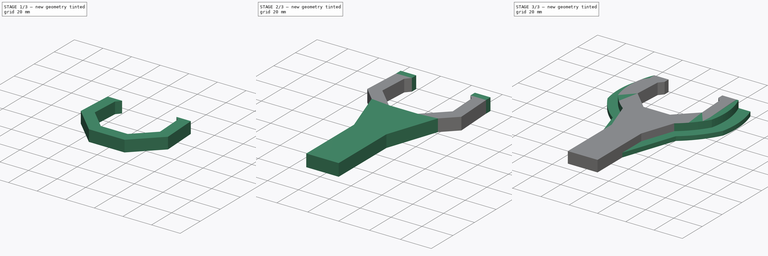
[diagram: build sequence overview — one tinted view per stage of 3, left to right]
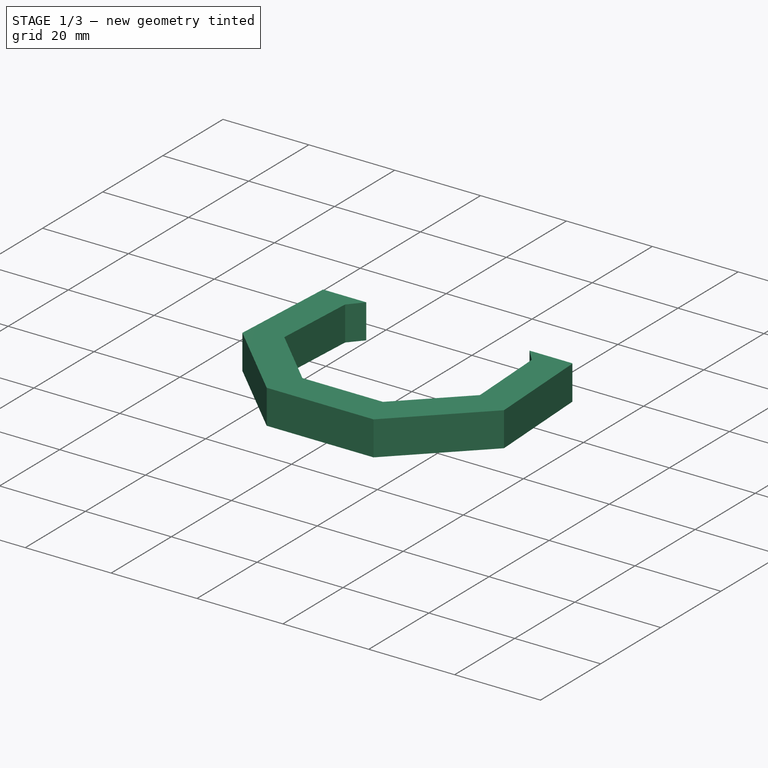
[diagram: stage 1 of 3 — iso view after this stage's code; geometry added in this stage tinted green]
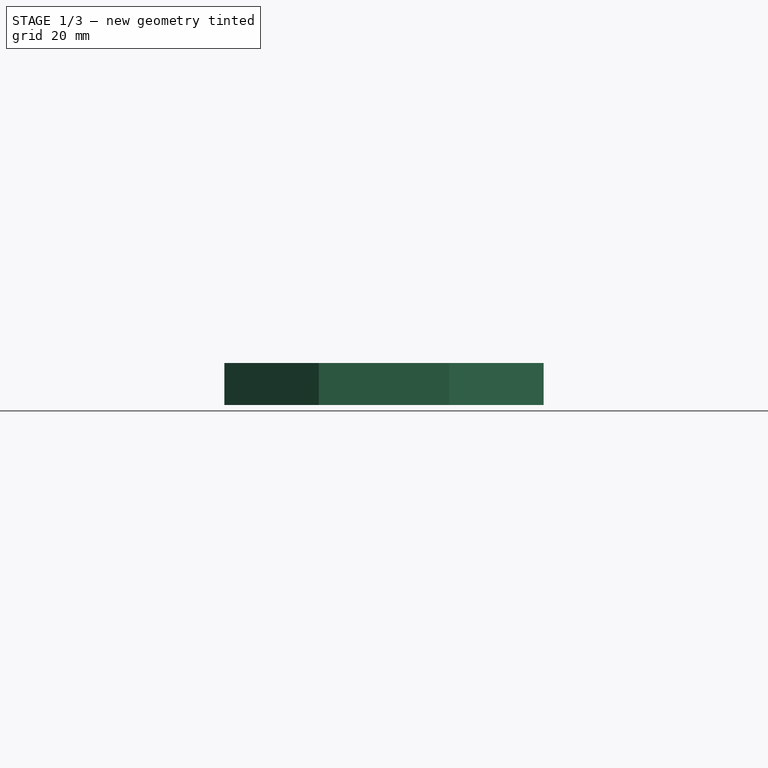
[diagram: stage 1 of 3 — front view after this stage's code; geometry added in this stage tinted green]
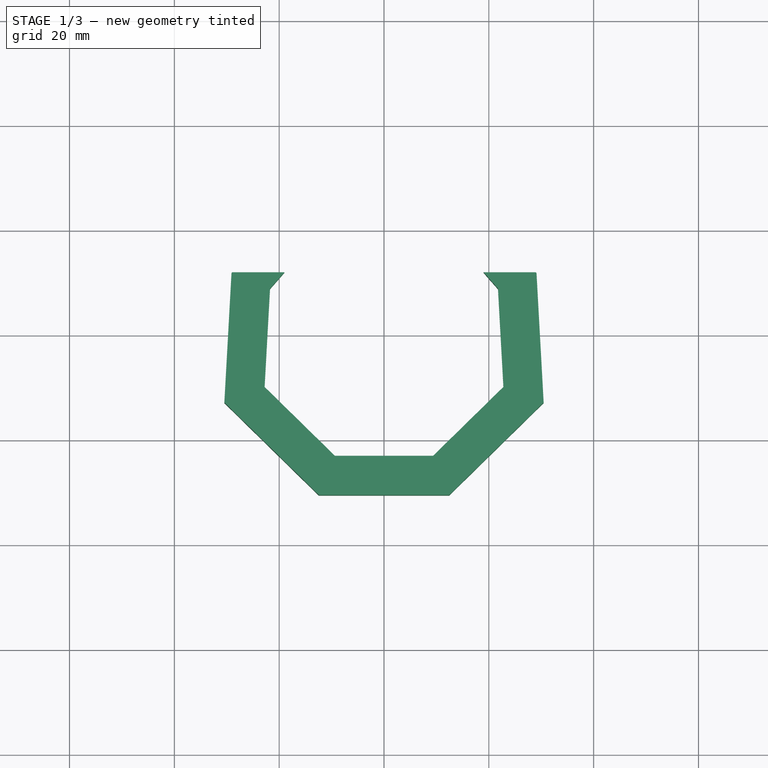
[diagram: stage 1 of 3 — top view after this stage's code; geometry added in this stage tinted green]
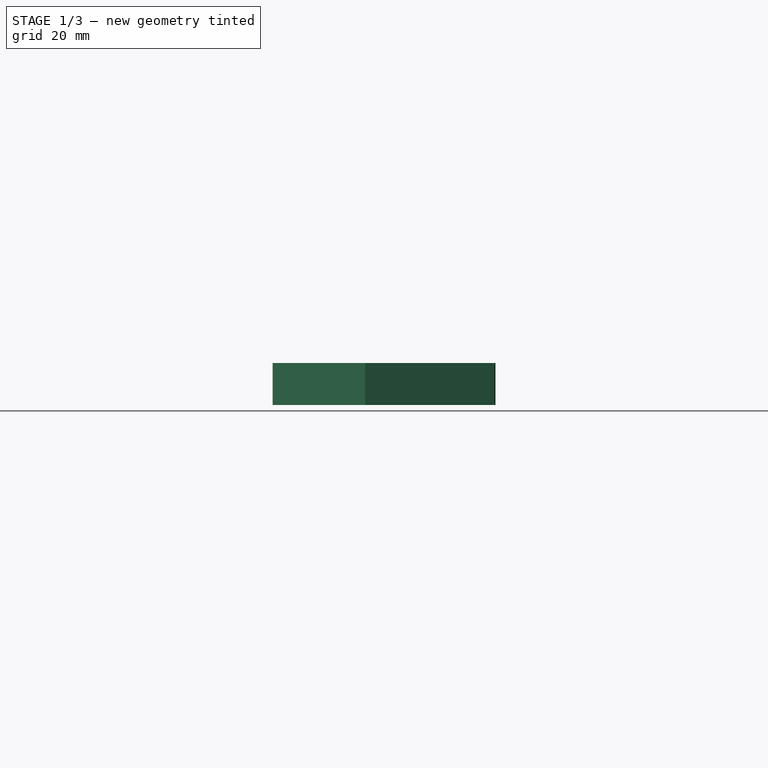
[diagram: stage 1 of 3 — right view after this stage's code; geometry added in this stage tinted green]
FCSTD DOCUMENT  (FreeCAD 1.0R39285 (Git))
Label: Ключ 34
License: All rights reserved
LicenseURL: https://en.wikipedia.org/wiki/All_rights_reserved
objects: Sketcher::SketchObject×5, PartDesign::Pad×5, PartDesign::Thickness×1, PartDesign::Body×1
note: 29 computed .brp shape members not serialized (recipe doc carries the construction recipe); baked Part::Feature solids carry a one-line shape summary decoded from their .brp

FEATURE [Sketcher::SketchObject] Sketch
  ArcFitTolerance = 1e-06
  AttachmentSupport = -> [XY_Plane]
  FullyConstrained = true
  MakeInternals = false
  MapMode = 5
  sketch-geometry (12):
    g0: LineSegment StartX=-21.75 StartY=8.87713 StartZ=0 EndX=-22.7847 EndY=-9.85623 EndZ=0
    g1: LineSegment StartX=-22.7847 StartY=-9.85623 StartZ=0 EndX=-9.38096 EndY=-22.9844 EndZ=0
    g2: LineSegment StartX=-9.38096 StartY=-22.9844 StartZ=0 EndX=9.38096 EndY=-22.9844 EndZ=0
    g3: LineSegment StartX=9.38096 StartY=-22.9844 StartZ=0 EndX=22.7847 EndY=-9.85623 EndZ=0
    g4: LineSegment StartX=22.7847 StartY=-9.85623 StartZ=0 EndX=21.75 EndY=8.87713 EndZ=0
    g5: LineSegment [constr] StartX=21.75 StartY=8.87713 StartZ=0 EndX=9.38096 EndY=22.9844 EndZ=0
    g6: LineSegment [constr] StartX=9.38096 StartY=22.9844 StartZ=0 EndX=-9.38096 EndY=22.9844 EndZ=0
    g7: LineSegment [constr] StartX=-9.38096 StartY=22.9844 StartZ=0 EndX=-21.75 EndY=8.87713 EndZ=0
    g8: Circle [constr] CenterX=0 CenterY=0 CenterZ=0 NormalX=0 NormalY=0 NormalZ=1 AngleXU=0 Radius=24.8251
    g9: LineSegment StartX=-21.75 StartY=8.87713 StartZ=0 EndX=-19 EndY=12.0136 EndZ=0
    g10: LineSegment StartX=21.75 StartY=8.87713 StartZ=0 EndX=19 EndY=12.0136 EndZ=0
    g11: LineSegment StartX=-19 StartY=12.0136 StartZ=0 EndX=19 EndY=12.0136 EndZ=0
  constraints (27):
    c: Coincident(g0,g1)
    c: Coincident(g1,g2)
    c: Coincident(g2,g3)
    c: Coincident(g3,g4)
    c: Coincident(g4,g5)
    c: Coincident(g5,g6)
    c: Coincident(g6,g7)
    c: Coincident(g7,g0)
    c: Equal(g0, g1-g7) x7
    c: PointOnObject(g0,g8)
    c: PointOnObject(g1,g8)
    c: PointOnObject(g2,g8)
    c: PointOnObject(g3,g8)
    c: PointOnObject(g5,g8)
    c: PointOnObject(g6,g8)
    c: Coincident(g8,g-1)
    c: Coincident(g9,g0)
    c: Coincident(g10,g4)
    c: Distance(g4,g0) = 45.5
    c: Coincident(g11,g9)
    c: Coincident(g11,g10)
    c: DistanceX(g11,g11) = 38
    c: PointOnObject(g9,g7)
    c: PointOnObject(g10,g5)
    c: Horizontal(g11)
    c: Symmetric(g4,g0,g-2)
    c: DistanceX(g0,g4) = 43.5
FEATURE [PartDesign::Pad] Pad
  Direction = (0,0,1)
  Length = 8
  Length2 = 10
  Profile = -> Sketch
  ReferenceAxis = -> Sketch [N_Axis]
  Refine = true
  Suppressed = false
  Type = 0
FEATURE [PartDesign::Thickness] Thickness
  Base = -> Pad [Face9,Face7,Face10]
  BaseFeature = -> Pad
  Intersection = false
  Join = 1
  Mode = 0
  Refine = true
  SupportTransform = false
  Suppressed = false
  Value = 7.5
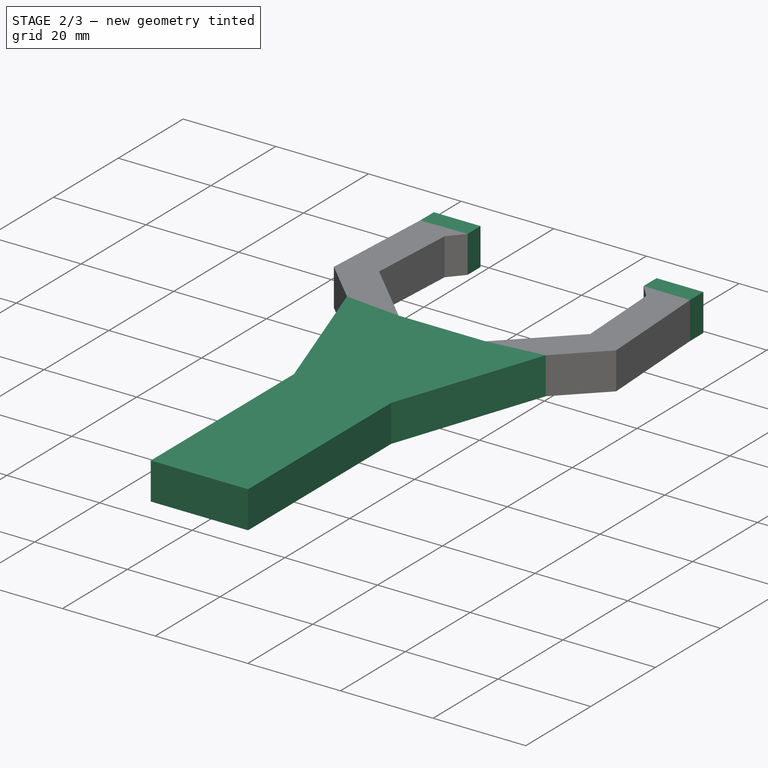
[diagram: stage 2 of 3 — iso view after this stage's code; geometry added in this stage tinted green]
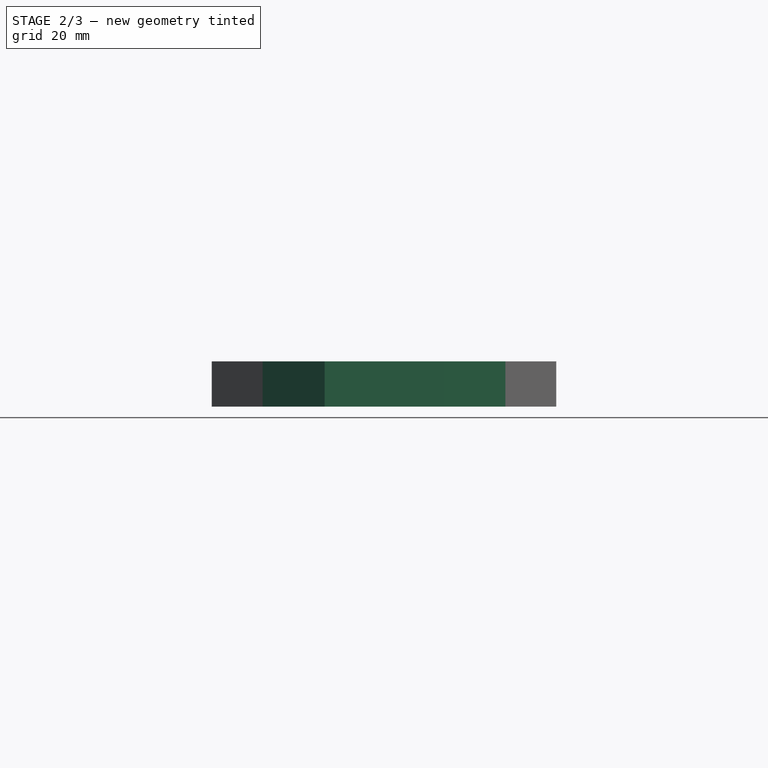
[diagram: stage 2 of 3 — front view after this stage's code; geometry added in this stage tinted green]
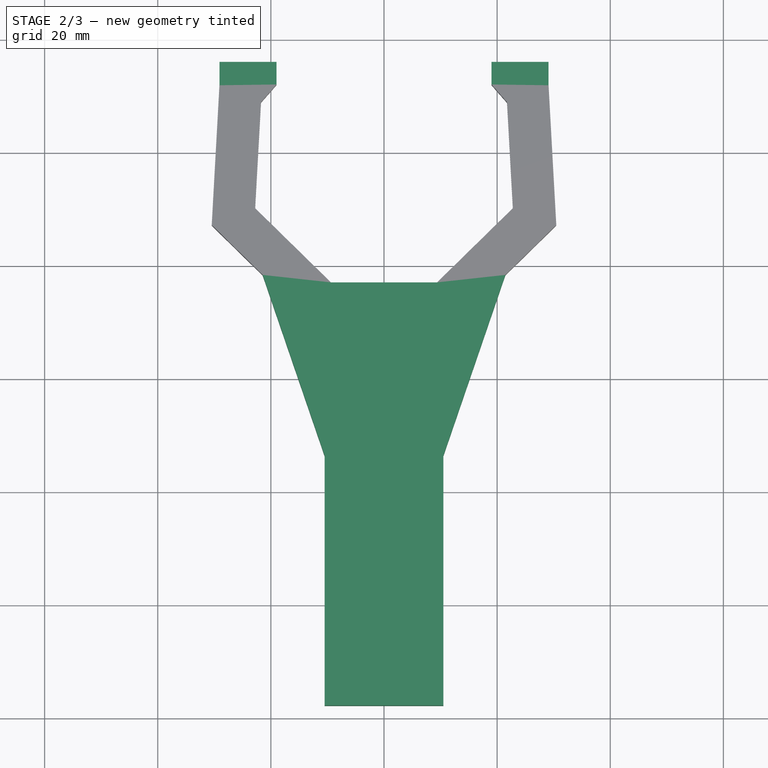
[diagram: stage 2 of 3 — top view after this stage's code; geometry added in this stage tinted green]
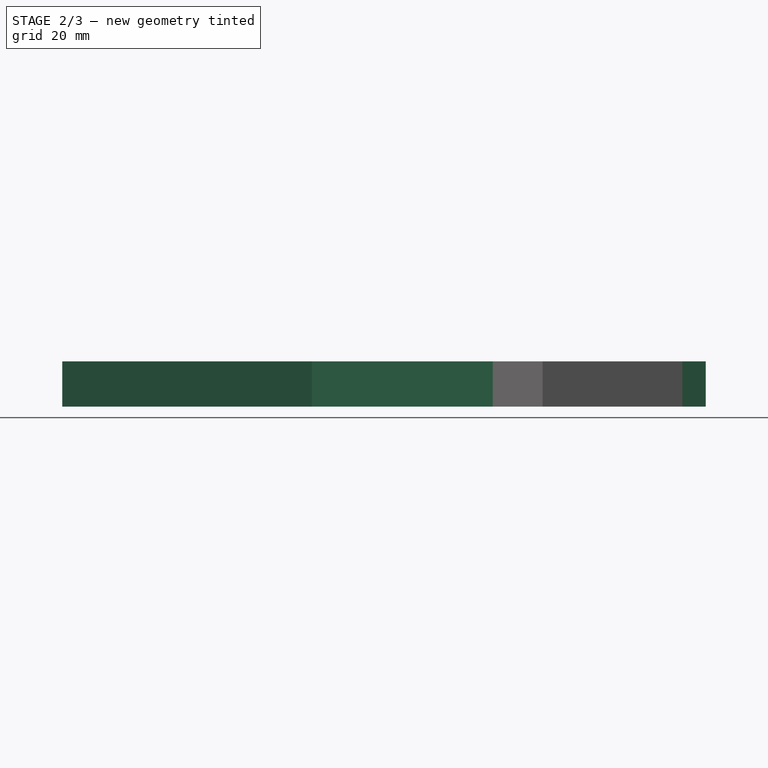
[diagram: stage 2 of 3 — right view after this stage's code; geometry added in this stage tinted green]
FEATURE [Sketcher::SketchObject] Sketch001
  ArcFitTolerance = 1e-06
  AttachmentSupport = -> [Thickness]
  ExternalGeometry = -> [Thickness]
  FullyConstrained = true
  MakeInternals = false
  MapMode = 5
  Placement = pos=(0,0,8) rot=(0,0,1;0rad)
  sketch-geometry (8):
    g0: LineSegment StartX=-29.0958 StartY=16.0136 StartZ=0 EndX=-29.0958 EndY=11.8753 EndZ=0
    g1: LineSegment StartX=-29.0958 StartY=11.8753 StartZ=0 EndX=-19 EndY=12.0136 EndZ=0
    g2: LineSegment StartX=-19 StartY=12.0136 StartZ=0 EndX=-19 EndY=16.0136 EndZ=0
    g3: LineSegment StartX=-19 StartY=16.0136 StartZ=0 EndX=-29.0958 EndY=16.0136 EndZ=0
    g4: LineSegment StartX=19 StartY=16.0136 StartZ=0 EndX=19 EndY=12.0136 EndZ=0
    g5: LineSegment StartX=19 StartY=12.0136 StartZ=0 EndX=29.0958 EndY=11.8753 EndZ=0
    g6: LineSegment StartX=29.0958 StartY=11.8753 StartZ=0 EndX=29.0958 EndY=16.0136 EndZ=0
    g7: LineSegment StartX=29.0958 StartY=16.0136 StartZ=0 EndX=19 EndY=16.0136 EndZ=0
  constraints (20):
    c: Coincident(g1,g2)
    c: Coincident(g2,g3)
    c: Coincident(g3,g0)
    c: Vertical(g0)
    c: Vertical(g2)
    c: Horizontal(g3)
    c: Coincident(g4,g5)
    c: Coincident(g6,g7)
    c: Coincident(g7,g4)
    c: Vertical(g4)
    c: Vertical(g6)
    c: Horizontal(g7)
    c: DistanceY(g4,g4) = 4
    c: Coincident(g4,g-4)
    c: Coincident(g1,g-3)
    c: Equal(g4,g2)
    c: Coincident(g5,g-5)
    c: Coincident(g5,g6)
    c: Coincident(g0,g1)
    c: Coincident(g0,g-6)
FEATURE [PartDesign::Pad] Pad001
  BaseFeature = -> Thickness
  Direction = (0,0,1)
  Length = 10
  Length2 = 10
  Profile = -> Sketch001
  ReferenceAxis = -> Sketch001 [N_Axis]
  Refine = true
  Reversed = true
  Suppressed = false
  Type = 3
  UpToFace = -> Thickness [Face8]
FEATURE [Sketcher::SketchObject] Sketch002
  ArcFitTolerance = 1e-06
  AttachmentSupport = -> [Pad001]
  ExternalGeometry = -> [Pad001]
  FullyConstrained = false
  MakeInternals = false
  MapMode = 5
  Placement = pos=(0,0,8) rot=(0,0,1;0rad)
  sketch-geometry (7):
    g0: LineSegment StartX=-21.4514 StartY=-21.6603 StartZ=0 EndX=-10.4938 EndY=-53.6355 EndZ=0
    g1: LineSegment StartX=21.4514 StartY=-21.6603 StartZ=0 EndX=10.4938 EndY=-53.6355 EndZ=0
    g2: LineSegment StartX=-10.4938 StartY=-53.6355 StartZ=0 EndX=-10.4938 EndY=-97.7798 EndZ=0
    g3: LineSegment StartX=-10.4938 StartY=-97.7798 StartZ=0 EndX=10.4938 EndY=-97.7798 EndZ=0
    g4: LineSegment StartX=10.4938 StartY=-97.7798 StartZ=0 EndX=10.4938 EndY=-53.6355 EndZ=0
    g5: LineSegment StartX=21.4514 StartY=-21.6603 StartZ=0 EndX=0 EndY=-30.4844 EndZ=0
    g6: LineSegment StartX=0 StartY=-30.4844 StartZ=0 EndX=-21.4514 EndY=-21.6603 EndZ=0
  constraints (15):
    c: Symmetric(g-4,g-4,g1)
    c: Symmetric(g-3,g-3,g0)
    c: Coincident(g0,g2)
    c: Vertical(g2)
    c: Coincident(g2,g3)
    c: Coincident(g3,g4)
    c: Coincident(g4,g1)
    c: Vertical(g4)
    c: Symmetric(g3,g2,g-2)
    c: Horizontal(g1,g0)
    c: Coincident(g5,g1)
    c: PointOnObject(g5,g-2)
    c: Coincident(g6,g5)
    c: Coincident(g6,g0)
    c: Horizontal(g-4,g5)
FEATURE [PartDesign::Pad] Pad002
  BaseFeature = -> Pad001
  Direction = (0,0,1)
  Length = 10
  Length2 = 10
  Profile = -> Sketch002
  ReferenceAxis = -> Sketch002 [N_Axis]
  Refine = true
  Reversed = true
  Suppressed = false
  Type = 3
  UpToFace = -> Pad001 [Face19]
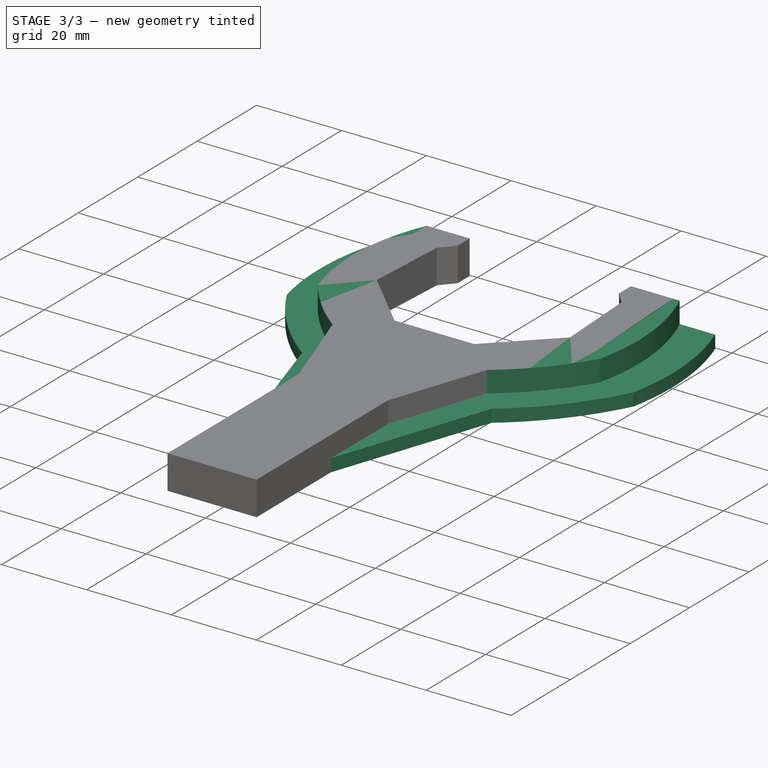
[diagram: stage 3 of 3 — iso view after this stage's code; geometry added in this stage tinted green]
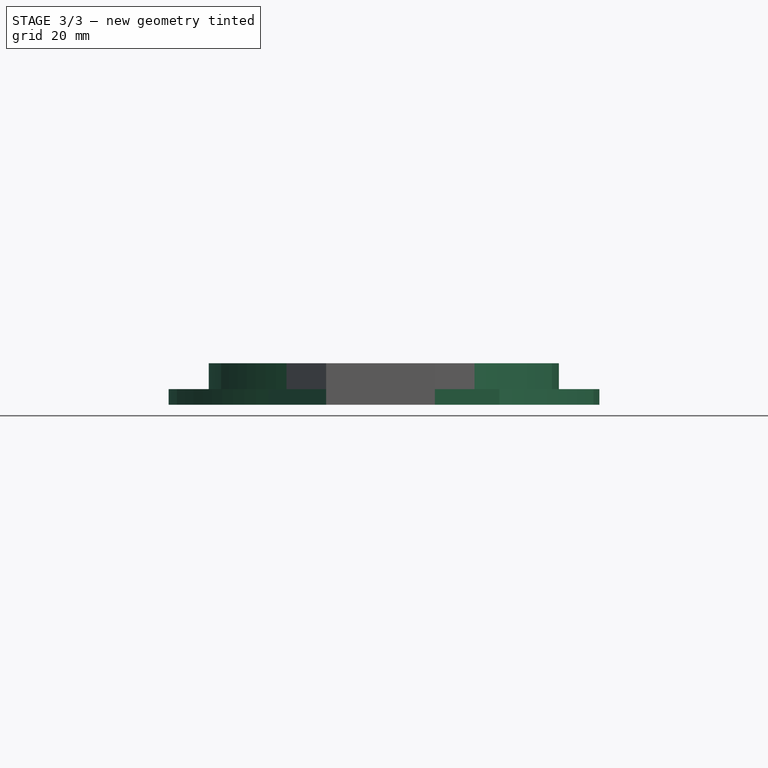
[diagram: stage 3 of 3 — front view after this stage's code; geometry added in this stage tinted green]
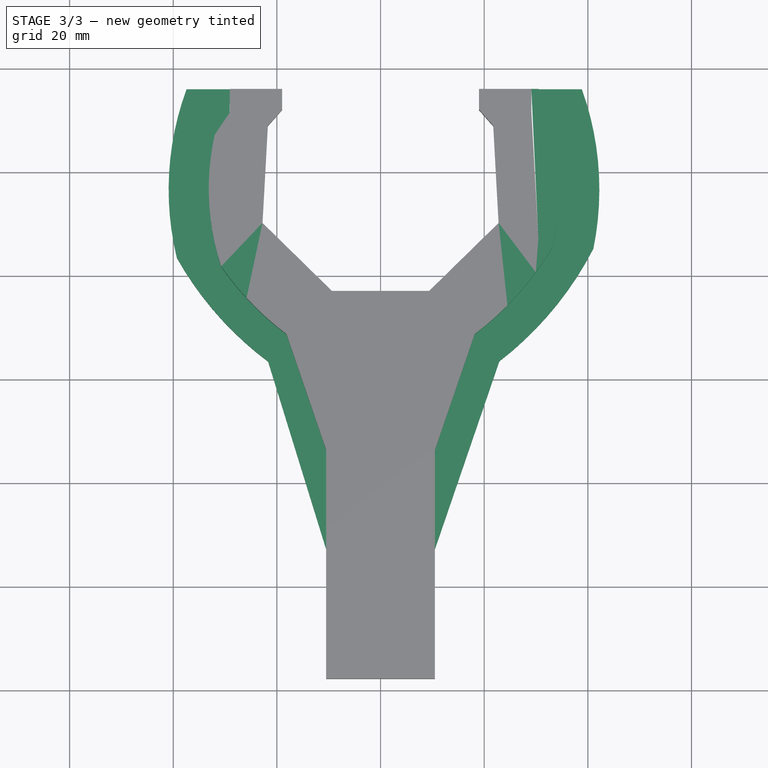
[diagram: stage 3 of 3 — top view after this stage's code; geometry added in this stage tinted green]
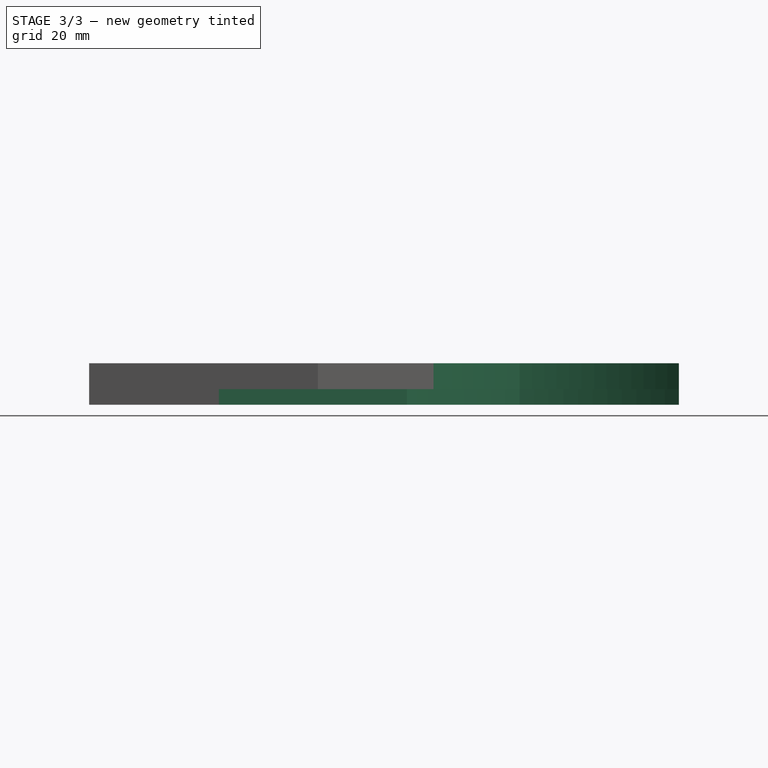
[diagram: stage 3 of 3 — right view after this stage's code; geometry added in this stage tinted green]
FEATURE [Sketcher::SketchObject] Sketch003
  ArcFitTolerance = 1e-06
  AttachmentSupport = -> [Pad002]
  ExternalGeometry = -> [Pad002]
  FullyConstrained = false
  MakeInternals = false
  MapMode = 5
  Placement = pos=(0,0,-1e-16) rot=(1,0,0;3.14159rad)
  sketch-geometry (12):
    g0: LineSegment StartX=-29.25 StartY=12.1157 StartZ=0 EndX=-12.1157 EndY=29.25 EndZ=0
    g1: LineSegment StartX=12.1157 StartY=29.25 StartZ=0 EndX=30.4607 EndY=12.8362 EndZ=0
    g2: ArcOfCircle CenterX=14.8381 CenterY=3.30651 CenterZ=0 NormalX=0 NormalY=0 NormalZ=1 AngleXU=0 Radius=47.9943 StartAngle=2.82463 EndAngle=3.55589
    g3: ArcOfCircle CenterX=16.8598 CenterY=-15.1434 CenterZ=0 NormalX=0 NormalY=0 NormalZ=1 AngleXU=0 Radius=58.1749 StartAngle=2.19565 EndAngle=2.52986
    g4: ArcOfCircle CenterX=-14.8381 CenterY=3.30651 CenterZ=0 NormalX=0 NormalY=0 NormalZ=1 AngleXU=0 Radius=49.2468 StartAngle=5.88004 EndAngle=6.51692
    g5: ArcOfCircle CenterX=-16.8598 CenterY=-15.1434 CenterZ=0 NormalX=0 NormalY=0 NormalZ=1 AngleXU=0 Radius=58.1749 StartAngle=0.538919 EndAngle=0.945939
    g6: LineSegment StartX=-12.1157 StartY=29.25 StartZ=0 EndX=-17.1715 EndY=32.0392 EndZ=0
    g7: LineSegment StartX=12.1157 StartY=29.25 StartZ=0 EndX=17.1715 EndY=32.0392 EndZ=0
    g8: LineSegment StartX=-29.0958 StartY=-16.0136 StartZ=0 EndX=-29.0958 EndY=-16.0136 EndZ=0
    g9: LineSegment StartX=-29.0958 StartY=-16.0136 StartZ=0 EndX=-29.25 EndY=12.1157 EndZ=0
    g10: LineSegment StartX=30.4607 StartY=-16.0136 StartZ=0 EndX=29.0958 EndY=-16.0136 EndZ=0
    g11: LineSegment StartX=29.0958 StartY=-16.0136 StartZ=0 EndX=30.4607 EndY=12.8362 EndZ=0
  constraints (26):
    c: Horizontal(g-8,g2)
    c: Horizontal(g-7,g4)
    c: Coincident(g1,g-5)
    c: Coincident(g0,g-4)
    c: Coincident(g3,g2)
    c: Coincident(g5,g4)
    c: Symmetric(g3,g5,g-2)
    c: Symmetric(g4,g2,g-2)
    c: PointOnObject(g5,g-10)
    c: Coincident(g6,g0)
    c: Coincident(g6,g3)
    c: Coincident(g7,g1)
    c: Coincident(g7,g5)
    c: Symmetric(g3,g5,g-2)
    c: Coincident(g8,g-8)
    c: Coincident(g9,g8)
    c: Coincident(g9,g0)
    c: Coincident(g0,g-4)
    c: Coincident(g8,g2)
    c: Vertical(g2,g-3)
    c: Coincident(g10,g4)
    c: Coincident(g10,g-7)
    c: Coincident(g11,g10)
    c: Coincident(g11,g1)
    c: Coincident(g1,g-6)
    c: Vertical(g4,g1)
FEATURE [PartDesign::Pad] Pad003
  BaseFeature = -> Pad002
  Direction = (0,0,-1)
  Length = 11
  Length2 = 10
  Profile = -> Sketch003
  ReferenceAxis = -> Sketch003 [N_Axis]
  Refine = true
  Reversed = true
  Suppressed = false
  Type = 3
  UpToFace = -> Pad002 [Face24]
FEATURE [Sketcher::SketchObject] Sketch004
  ArcFitTolerance = 1e-06
  AttachmentOffset = pos=(0,0,-6) rot=(0,0,1;0rad)
  ExternalGeometry = -> [Pad003]
  FullyConstrained = false
  MakeInternals = false
  MapMode = 5
  Placement = pos=(0,0,0) rot=(1,0,0;3.14159rad)
  sketch-geometry (16):
    g0: ArcOfCircle CenterX=-14.8381 CenterY=3.30651 CenterZ=0 NormalX=0 NormalY=0 NormalZ=1 AngleXU=0 Radius=49.2468 StartAngle=5.88004 EndAngle=6.51692
    g1: ArcOfCircle CenterX=-16.8598 CenterY=-15.1434 CenterZ=0 NormalX=0 NormalY=0 NormalZ=1 AngleXU=0 Radius=58.1749 StartAngle=0.538919 EndAngle=0.925277
    g2: ArcOfCircle CenterX=14.8381 CenterY=3.30651 CenterZ=0 NormalX=0 NormalY=0 NormalZ=1 AngleXU=0 Radius=47.9943 StartAngle=2.86288 EndAngle=3.55589
    g3: ArcOfCircle CenterX=16.8173 CenterY=-15.1029 CenterZ=0 NormalX=0 NormalY=0 NormalZ=1 AngleXU=0 Radius=57.5768 StartAngle=2.20802 EndAngle=2.56035
    g4: ArcOfCircle CenterX=14.8381 CenterY=3.30651 CenterZ=0 NormalX=0 NormalY=0 NormalZ=1 AngleXU=0 Radius=55.7291 StartAngle=2.90239 EndAngle=3.49562
    g5: ArcOfCircle CenterX=16.8173 CenterY=-15.1029 CenterZ=0 NormalX=0 NormalY=0 NormalZ=1 AngleXU=0 Radius=64.413 StartAngle=2.21158 EndAngle=2.62859
    g6: ArcOfCircle CenterX=-16.8598 CenterY=-15.1434 CenterZ=0 NormalX=0 NormalY=0 NormalZ=1 AngleXU=0 Radius=65.1704 StartAngle=0.475878 EndAngle=0.914199
    g7: ArcOfCircle CenterX=-14.8381 CenterY=3.30651 CenterZ=0 NormalX=0 NormalY=0 NormalZ=1 AngleXU=0 Radius=57.0594 StartAngle=5.93776 EndAngle=6.48444
    g8: LineSegment StartX=-29.0958 StartY=-16.0136 StartZ=0 EndX=-37.4349 EndY=-16.0136 EndZ=0
    g9: LineSegment StartX=30.4607 StartY=-16.0136 StartZ=0 EndX=38.8509 EndY=-16.0136 EndZ=0
    g10: LineSegment StartX=22.9219 StartY=36.4764 StartZ=0 EndX=10.4938 EndY=72.7428 EndZ=0
    g11: LineSegment StartX=-21.6902 StartY=36.5324 StartZ=0 EndX=-10.4938 EndY=72.7428 EndZ=0
    g12: LineSegment StartX=-10.4938 StartY=53.6355 StartZ=0 EndX=-10.4938 EndY=72.7428 EndZ=0
    g13: LineSegment StartX=10.4938 StartY=53.6355 StartZ=0 EndX=10.4938 EndY=72.7428 EndZ=0
    g14: LineSegment StartX=-17.4388 StartY=31.1746 StartZ=0 EndX=-10.4938 EndY=53.6355 EndZ=0
    g15: LineSegment StartX=10.4938 StartY=53.6355 StartZ=0 EndX=18.139 EndY=31.326 EndZ=0
  constraints (41):
    c: Coincident(g-3,g2)
    c: Coincident(g3,g-4)
    c: Coincident(g-6,g0)
    c: Coincident(g1,g-5)
    c: Coincident(g-3,g2)
    c: Coincident(g3,g2)
    c: Coincident(g3,g-4)
    c: Coincident(g1,g-5)
    c: Coincident(g1,g0)
    c: Coincident(g0,g-6)
    c: Coincident(g5,g4)
    c: Coincident(g7,g6)
    c: Coincident(g8,g2)
    c: Coincident(g8,g4)
    c: Coincident(g9,g0)
    c: Coincident(g9,g7)
    c: Horizontal(g8)
    c: Horizontal(g9)
    c: Coincident(g11,g5)
    c: Coincident(g12,g-7)
    c: Coincident(g12,g11)
    c: Vertical(g12)
    c: Coincident(g13,g10)
    c: Coincident(g-8,g13)
    c: Vertical(g13)
    c: Horizontal(g10,g11)
    c: Coincident(g6,g10)
    c: Coincident(g14,g3)
    c: Coincident(g14,g12)
    c: Coincident(g15,g13)
    c: Coincident(g15,g1)
    c: Parallel(g15,g10)
    c: Parallel(g14,g11)
    c: Coincident(g6,g1)
    c: Coincident(g5,g3)
    c: Coincident(g2,g4)
    c: Coincident(g0,g7)
    c: DistanceX(g4,g2) = 8
    c: DistanceX(g0,g6) = 8
    c: Horizontal(g6,g0)
    c: Horizontal(g2,g4)
FEATURE [PartDesign::Pad] Pad004
  BaseFeature = -> Pad003
  Direction = (0,-1e-16,-1)
  Length = 3
  Length2 = 1.5
  Profile = -> Sketch004
  ReferenceAxis = -> Sketch004 [N_Axis]
  Refine = true
  Reversed = true
  Suppressed = false
  Type = 0
FEATURE [PartDesign::Body] Body  label="Тело"
  AllowCompound = false
  Group = -> [Sketch,Pad,Thickness,Sketch001,Pad001,Sketch002,Pad002,Sketch003,Pad003,Sketch004,Pad004]
  Origin = -> Origin
  Tip = -> Pad004
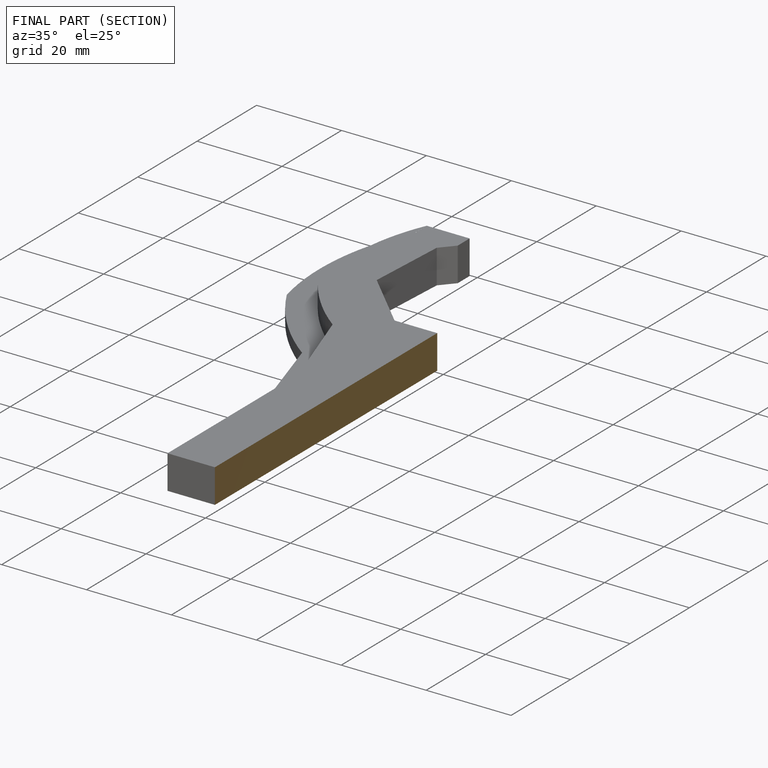
[diagram: finished part — half-section view (interior)]
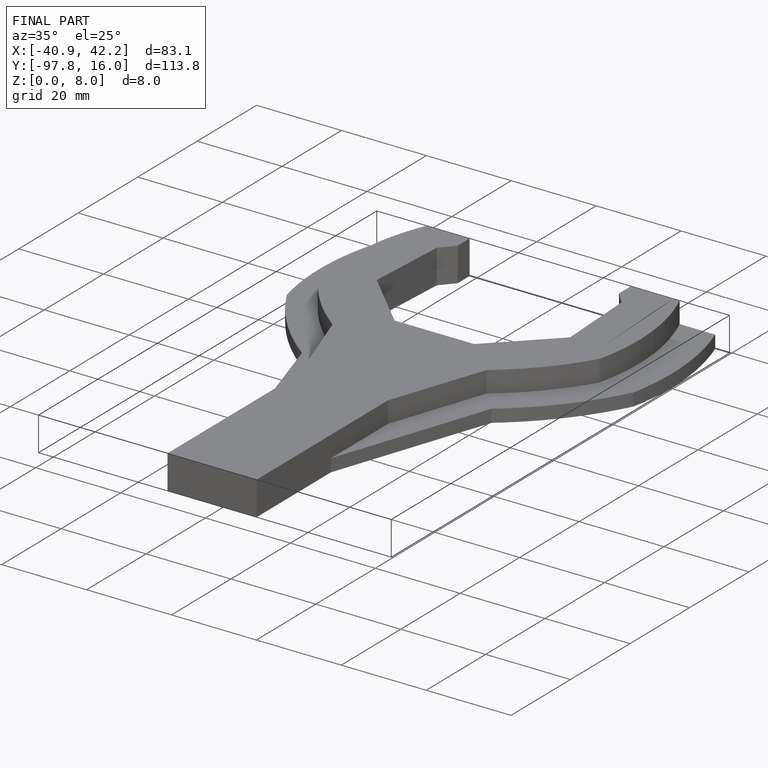
[diagram: finished part — iso view with bounding-box wireframe]
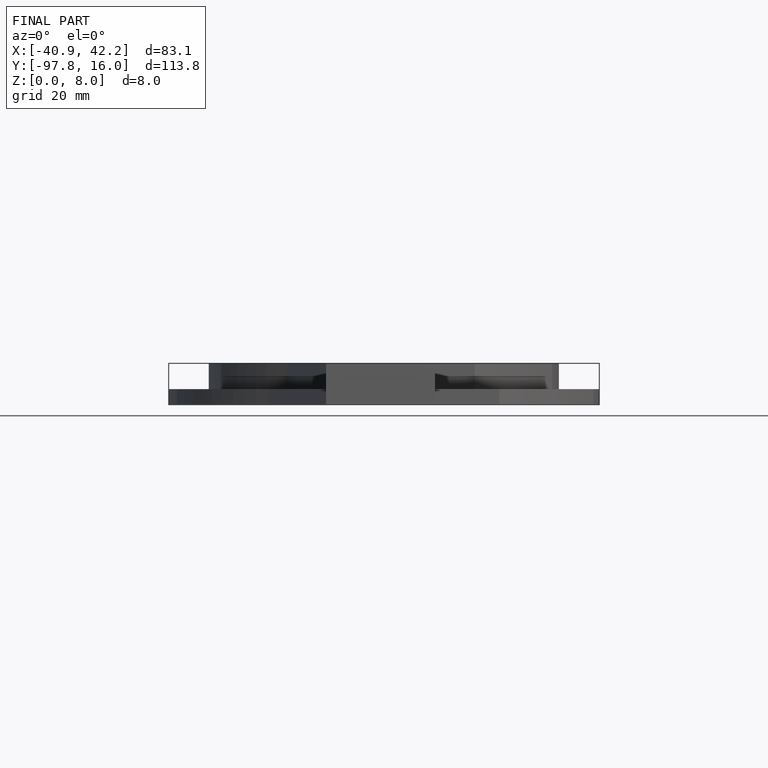
[diagram: finished part — front view with bounding-box wireframe]
